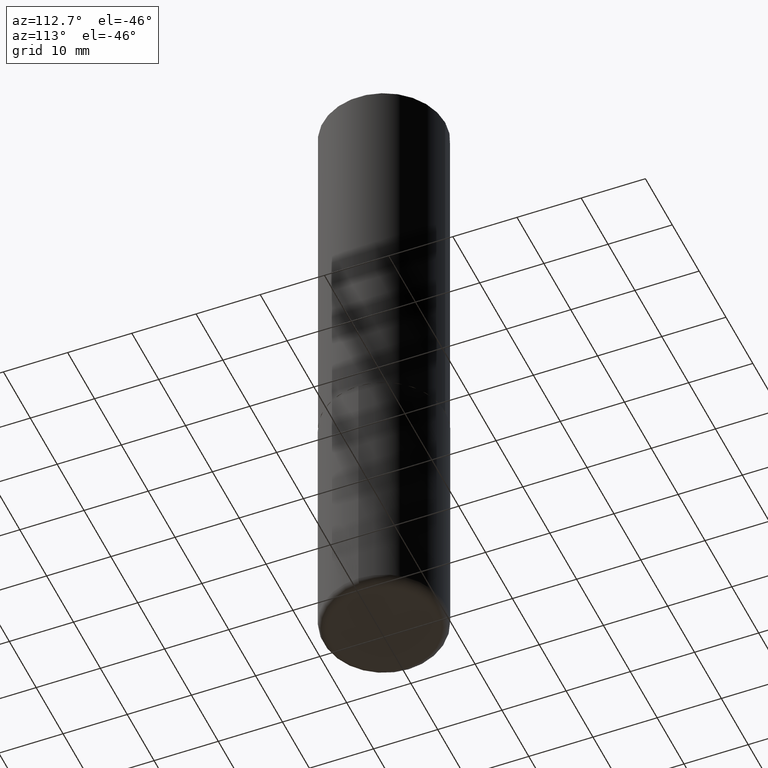
[diagram: clean part render]
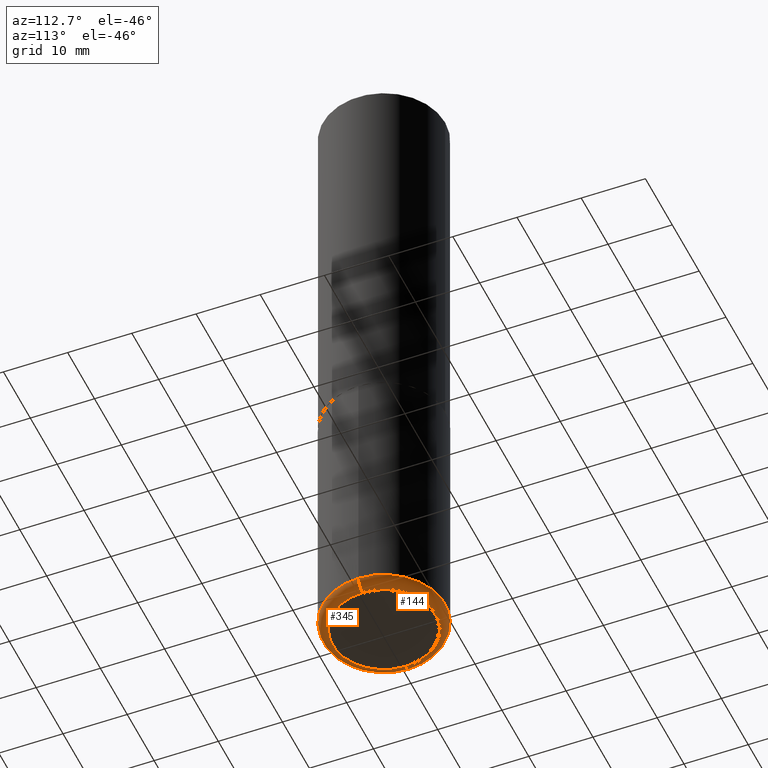
[diagram: same view with one multi-face feature highlighted, each face labeled with its STEP entity id]
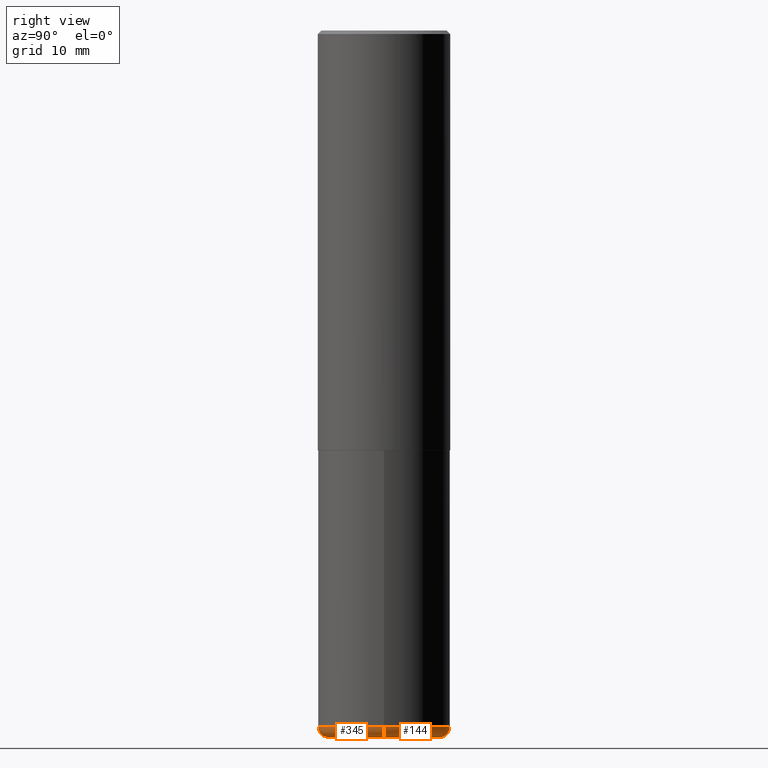
[diagram: same view with one multi-face feature highlighted, each face labeled with its STEP entity id]
A machine part, auxiliary view. The highlighted faces form ONE feature: a constant-radius fillet chain: 2 tangent blend faces with common blend radius 1.524 mm. The faces share edges in the B-rep.
A second angle (right view) of the same feature is appended — it is thin or edge-on in the first view.
Their STEP definitions:
[1] entity #144 (Torus):
#22 = EDGE_CURVE ( 'NONE', #193, #98, #214, .T. ) ;
#24 = DIRECTION ( 'NONE',  ( 1.000000000000000000, -6.982962677686266711E-15, 0.000000000000000000 ) ) ;
#26 = VERTEX_POINT ( 'NONE', #252 ) ;
#31 = AXIS2_PLACEMENT_3D ( 'NONE', #403, #271, #24 ) ;
#47 = AXIS2_PLACEMENT_3D ( 'NONE', #163, #79, #170 ) ;
#49 = DIRECTION ( 'NONE',  ( 7.105427357601001859E-15, 1.000000000000000000, -3.491481338843145583E-15 ) ) ;
#65 = CIRCLE ( 'NONE', #109, 0.06000000000000017819 ) ;
#74 = EDGE_CURVE ( 'NONE', #98, #221, #300, .T. ) ;
#79 = DIRECTION ( 'NONE',  ( -2.445468806185136597E-29, 3.491481338843145583E-15, 1.000000000000000000 ) ) ;
#93 = EDGE_LOOP ( 'NONE', ( #118, #143, #389, #370 ) ) ;
#98 = VERTEX_POINT ( 'NONE', #236 ) ;
#109 = AXIS2_PLACEMENT_3D ( 'NONE', #211, #333, #402 ) ;
#118 = ORIENTED_EDGE ( 'NONE', *, *, #22, .T. ) ;
#121 = DIRECTION ( 'NONE',  ( 1.000000000000000000, -6.982962677686267499E-15, 0.000000000000000000 ) ) ;
#139 = FACE_OUTER_BOUND ( 'NONE', #93, .T. ) ;
#143 = ORIENTED_EDGE ( 'NONE', *, *, #74, .T. ) ;
#144 = ADVANCED_FACE ( 'NONE', ( #139 ), #237, .T. ) ;
#163 = CARTESIAN_POINT ( 'NONE',  ( 9.635147096369438236E-29, -1.375643647504199401E-14, -3.939999999999999947 ) ) ;
#170 = DIRECTION ( 'NONE',  ( 1.000000000000000000, -6.982962677686263555E-15, 4.883557194083111219E-29 ) ) ;
#193 = VERTEX_POINT ( 'NONE', #231 ) ;
#211 = CARTESIAN_POINT ( 'NONE',  ( 0.3150000000000000577, -1.595606971851316740E-14, -3.939999999999999947 ) ) ;
#214 = CIRCLE ( 'NONE', #244, 0.3150000000000000577 ) ;
#221 = VERTEX_POINT ( 'NONE', #264 ) ;
#231 = CARTESIAN_POINT ( 'NONE',  ( 0.3150000000000000577, -1.616555859884375729E-14, -4.000000000000000888 ) ) ;
#236 = CARTESIAN_POINT ( 'NONE',  ( -0.3150000000000000577, -1.140980847683494193E-14, -4.000000000000000888 ) ) ;
#237 = TOROIDAL_SURFACE ( 'NONE', #47, 0.3150000000000000577, 0.06000000000000021289 ) ;
#244 = AXIS2_PLACEMENT_3D ( 'NONE', #412, #352, #121 ) ;
#252 = CARTESIAN_POINT ( 'NONE',  ( 0.3750000000000001110, -1.637504747917434403E-14, -3.939999999999999947 ) ) ;
#264 = CARTESIAN_POINT ( 'NONE',  ( -0.3750000000000001110, -1.109190121594161832E-14, -3.939999999999999947 ) ) ;
#271 = DIRECTION ( 'NONE',  ( -2.445468806185136597E-29, 3.491481338843145583E-15, 1.000000000000000000 ) ) ;
#281 = CIRCLE ( 'NONE', #31, 0.3750000000000000555 ) ;
#300 = CIRCLE ( 'NONE', #338, 0.06000000000000017819 ) ;
#333 = DIRECTION ( 'NONE',  ( -6.982962677686266711E-15, -1.000000000000000000, 3.491481338843145583E-15 ) ) ;
#338 = AXIS2_PLACEMENT_3D ( 'NONE', #360, #49, #390 ) ;
#352 = DIRECTION ( 'NONE',  ( -2.445468806185136597E-29, 3.491481338843145583E-15, 1.000000000000000000 ) ) ;
#358 = EDGE_CURVE ( 'NONE', #193, #26, #65, .T. ) ;
#360 = CARTESIAN_POINT ( 'NONE',  ( -0.3150000000000000577, -1.151822685739767881E-14, -3.939999999999999947 ) ) ;
#370 = ORIENTED_EDGE ( 'NONE', *, *, #358, .F. ) ;
#379 = EDGE_CURVE ( 'NONE', #26, #221, #281, .T. ) ;
#389 = ORIENTED_EDGE ( 'NONE', *, *, #379, .F. ) ;
#390 = DIRECTION ( 'NONE',  ( -1.000000000000000000, 7.105427357601001859E-15, 0.000000000000000000 ) ) ;
#402 = DIRECTION ( 'NONE',  ( 1.000000000000000000, -6.982962677686279332E-15, 0.000000000000000000 ) ) ;
#403 = CARTESIAN_POINT ( 'NONE',  ( 9.635147096369438236E-29, -1.375643647504199401E-14, -3.939999999999999947 ) ) ;
#412 = CARTESIAN_POINT ( 'NONE',  ( 9.781875224740547508E-29, -1.396592535537258391E-14, -4.000000000000000888 ) ) ;
[2] entity #345 (Torus):
#16 = TOROIDAL_SURFACE ( 'NONE', #249, 0.3150000000000000577, 0.06000000000000021289 ) ;
#21 = CARTESIAN_POINT ( 'NONE',  ( 9.635147096369438236E-29, -1.375643647504199401E-14, -3.939999999999999947 ) ) ;
#26 = VERTEX_POINT ( 'NONE', #252 ) ;
#39 = EDGE_CURVE ( 'NONE', #98, #193, #256, .T. ) ;
#49 = DIRECTION ( 'NONE',  ( 7.105427357601001859E-15, 1.000000000000000000, -3.491481338843145583E-15 ) ) ;
#53 = DIRECTION ( 'NONE',  ( -2.445468806185136597E-29, 3.491481338843145583E-15, 1.000000000000000000 ) ) ;
#65 = CIRCLE ( 'NONE', #109, 0.06000000000000017819 ) ;
#66 = CARTESIAN_POINT ( 'NONE',  ( 9.781875224740547508E-29, -1.396592535537258391E-14, -4.000000000000000888 ) ) ;
#69 = DIRECTION ( 'NONE',  ( 1.000000000000000000, -6.982962677686263555E-15, 4.883557194083111219E-29 ) ) ;
#71 = AXIS2_PLACEMENT_3D ( 'NONE', #21, #53, #169 ) ;
#74 = EDGE_CURVE ( 'NONE', #98, #221, #300, .T. ) ;
#98 = VERTEX_POINT ( 'NONE', #236 ) ;
#109 = AXIS2_PLACEMENT_3D ( 'NONE', #211, #333, #402 ) ;
#138 = DIRECTION ( 'NONE',  ( -2.445468806185136597E-29, 3.491481338843145583E-15, 1.000000000000000000 ) ) ;
#169 = DIRECTION ( 'NONE',  ( 1.000000000000000000, -6.982962677686266711E-15, 0.000000000000000000 ) ) ;
#184 = FACE_OUTER_BOUND ( 'NONE', #312, .T. ) ;
#188 = ORIENTED_EDGE ( 'NONE', *, *, #358, .T. ) ;
#193 = VERTEX_POINT ( 'NONE', #231 ) ;
#196 = AXIS2_PLACEMENT_3D ( 'NONE', #66, #138, #365 ) ;
#197 = CIRCLE ( 'NONE', #71, 0.3750000000000000555 ) ;
#211 = CARTESIAN_POINT ( 'NONE',  ( 0.3150000000000000577, -1.595606971851316740E-14, -3.939999999999999947 ) ) ;
#221 = VERTEX_POINT ( 'NONE', #264 ) ;
#231 = CARTESIAN_POINT ( 'NONE',  ( 0.3150000000000000577, -1.616555859884375729E-14, -4.000000000000000888 ) ) ;
#236 = CARTESIAN_POINT ( 'NONE',  ( -0.3150000000000000577, -1.140980847683494193E-14, -4.000000000000000888 ) ) ;
#249 = AXIS2_PLACEMENT_3D ( 'NONE', #409, #288, #69 ) ;
#252 = CARTESIAN_POINT ( 'NONE',  ( 0.3750000000000001110, -1.637504747917434403E-14, -3.939999999999999947 ) ) ;
#256 = CIRCLE ( 'NONE', #196, 0.3150000000000000577 ) ;
#264 = CARTESIAN_POINT ( 'NONE',  ( -0.3750000000000001110, -1.109190121594161832E-14, -3.939999999999999947 ) ) ;
#279 = ORIENTED_EDGE ( 'NONE', *, *, #39, .T. ) ;
#288 = DIRECTION ( 'NONE',  ( -2.445468806185136597E-29, 3.491481338843145583E-15, 1.000000000000000000 ) ) ;
#300 = CIRCLE ( 'NONE', #338, 0.06000000000000017819 ) ;
#312 = EDGE_LOOP ( 'NONE', ( #354, #279, #188, #406 ) ) ;
#333 = DIRECTION ( 'NONE',  ( -6.982962677686266711E-15, -1.000000000000000000, 3.491481338843145583E-15 ) ) ;
#338 = AXIS2_PLACEMENT_3D ( 'NONE', #360, #49, #390 ) ;
#345 = ADVANCED_FACE ( 'NONE', ( #184 ), #16, .T. ) ;
#354 = ORIENTED_EDGE ( 'NONE', *, *, #74, .F. ) ;
#358 = EDGE_CURVE ( 'NONE', #193, #26, #65, .T. ) ;
#360 = CARTESIAN_POINT ( 'NONE',  ( -0.3150000000000000577, -1.151822685739767881E-14, -3.939999999999999947 ) ) ;
#365 = DIRECTION ( 'NONE',  ( 1.000000000000000000, -6.982962677686267499E-15, 0.000000000000000000 ) ) ;
#383 = EDGE_CURVE ( 'NONE', #221, #26, #197, .T. ) ;
#390 = DIRECTION ( 'NONE',  ( -1.000000000000000000, 7.105427357601001859E-15, 0.000000000000000000 ) ) ;
#402 = DIRECTION ( 'NONE',  ( 1.000000000000000000, -6.982962677686279332E-15, 0.000000000000000000 ) ) ;
#406 = ORIENTED_EDGE ( 'NONE', *, *, #383, .F. ) ;
#409 = CARTESIAN_POINT ( 'NONE',  ( 9.635147096369438236E-29, -1.375643647504199401E-14, -3.939999999999999947 ) ) ;